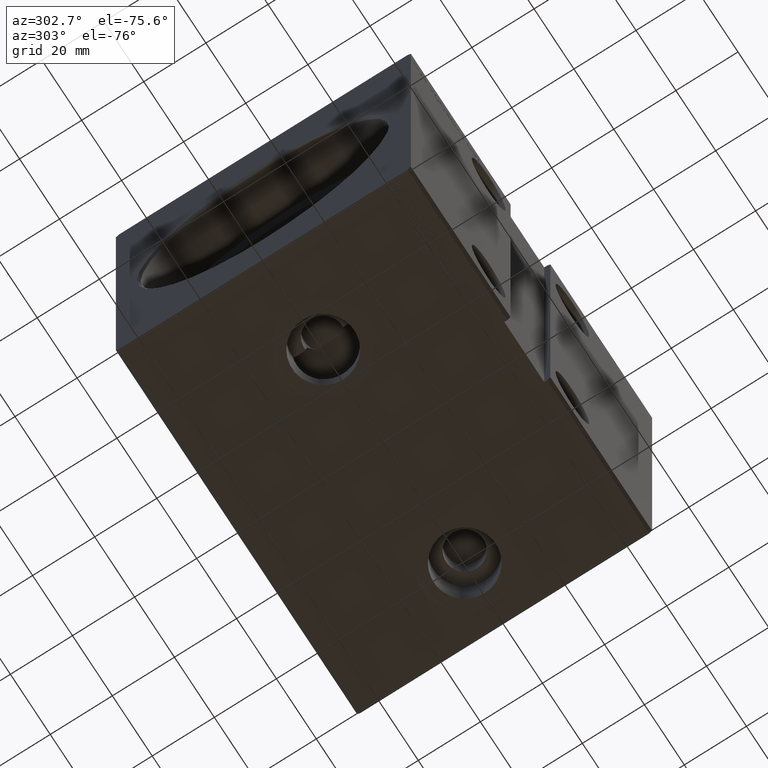
[diagram: clean part render]
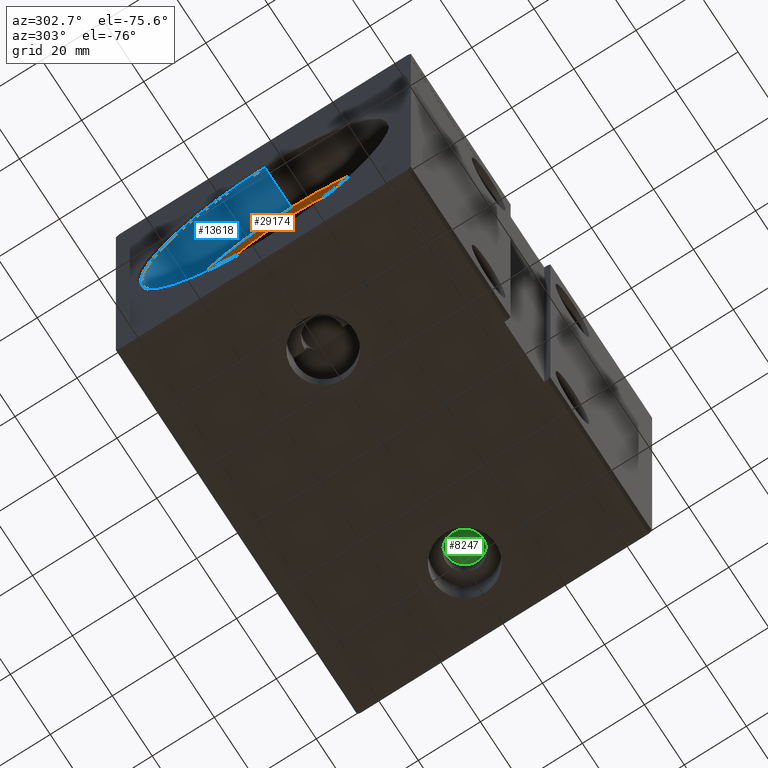
[diagram: same view with three faces highlighted in distinct colors, each labeled with its STEP entity id]
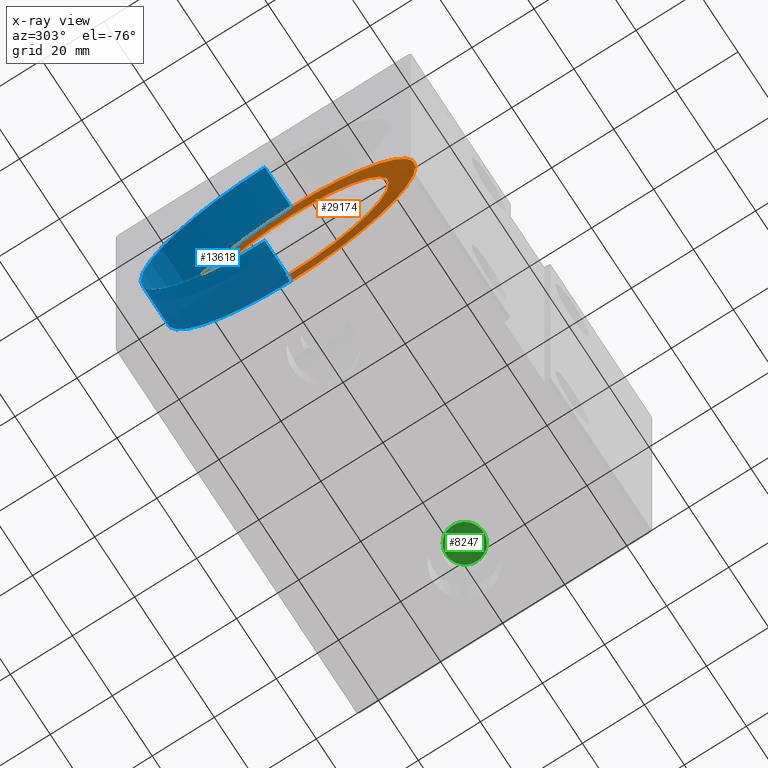
[diagram: x-ray of the same camera — body ghosted, the three highlighted faces saturated]
A machine part, auxiliary view with three faces highlighted in distinct colors.
The next image is the same camera in x-ray (body ghosted, the three faces saturated) — at least one of them is partly hidden behind the body in this view.
Their STEP definitions:

[orange] entity #29174 — the highlighted planar face has unit normal (-1, 0, 0).
#488 = CARTESIAN_POINT ( 'NONE',  ( 13.99999999999999822, 0.000000000000000000, 31.50000000000000000 ) ) ;
#875 = VERTEX_POINT ( 'NONE', #488 ) ;
#2375 = EDGE_CURVE ( 'NONE', #41152, #875, #17543, .T. ) ;
#6360 = DIRECTION ( 'NONE',  ( 0.000000000000000000, 0.000000000000000000, 1.000000000000000000 ) ) ;
#6861 = AXIS2_PLACEMENT_3D ( 'NONE', #16588, #29590, #6360 ) ;
#8721 = DIRECTION ( 'NONE',  ( -1.000000000000000000, 0.000000000000000000, 0.000000000000000000 ) ) ;
#10766 = ORIENTED_EDGE ( 'NONE', *, *, #17046, .F. ) ;
#11341 = AXIS2_PLACEMENT_3D ( 'NONE', #15786, #12373, #41798 ) ;
#11582 = ORIENTED_EDGE ( 'NONE', *, *, #23673, .T. ) ;
#12046 = VERTEX_POINT ( 'NONE', #22905 ) ;
#12373 = DIRECTION ( 'NONE',  ( -1.000000000000000000, 0.000000000000000000, 0.000000000000000000 ) ) ;
#12471 = ORIENTED_EDGE ( 'NONE', *, *, #2375, .F. ) ;
#13232 = EDGE_LOOP ( 'NONE', ( #33689, #11582 ) ) ;
#15243 = AXIS2_PLACEMENT_3D ( 'NONE', #38928, #20157, #42133 ) ;
#15325 = FACE_BOUND ( 'NONE', #29424, .T. ) ;
#15786 = CARTESIAN_POINT ( 'NONE',  ( 14.00000000000000000, 0.000000000000000000, 0.000000000000000000 ) ) ;
#16588 = CARTESIAN_POINT ( 'NONE',  ( 13.99999999999999822, 0.000000000000000000, 0.000000000000000000 ) ) ;
#17046 = EDGE_CURVE ( 'NONE', #875, #41152, #29988, .T. ) ;
#17543 = CIRCLE ( 'NONE', #18884, 31.50000000000000000 ) ;
#18322 = CARTESIAN_POINT ( 'NONE',  ( 14.00000000000000000, 0.000000000000000000, 0.000000000000000000 ) ) ;
#18884 = AXIS2_PLACEMENT_3D ( 'NONE', #32081, #36675, #39875 ) ;
#20157 = DIRECTION ( 'NONE',  ( -1.000000000000000000, 0.000000000000000000, 0.000000000000000000 ) ) ;
#22905 = CARTESIAN_POINT ( 'NONE',  ( 14.00000000000000000, 0.000000000000000000, 40.00000000000000000 ) ) ;
#23673 = EDGE_CURVE ( 'NONE', #25391, #12046, #37716, .T. ) ;
#24725 = FACE_OUTER_BOUND ( 'NONE', #13232, .T. ) ;
#25314 = CARTESIAN_POINT ( 'NONE',  ( 13.99999999999999822, 3.857637417314162689E-15, -31.50000000000000000 ) ) ;
#25391 = VERTEX_POINT ( 'NONE', #40667 ) ;
#28232 = EDGE_CURVE ( 'NONE', #12046, #25391, #29729, .T. ) ;
#29174 = ADVANCED_FACE ( 'NONE', ( #15325, #24725 ), #37706, .T. ) ;
#29424 = EDGE_LOOP ( 'NONE', ( #10766, #12471 ) ) ;
#29590 = DIRECTION ( 'NONE',  ( -1.000000000000000000, 0.000000000000000000, 0.000000000000000000 ) ) ;
#29729 = CIRCLE ( 'NONE', #11341, 40.00000000000000000 ) ;
#29988 = CIRCLE ( 'NONE', #6861, 31.50000000000000000 ) ;
#31328 = DIRECTION ( 'NONE',  ( 0.000000000000000000, 0.000000000000000000, 1.000000000000000000 ) ) ;
#32081 = CARTESIAN_POINT ( 'NONE',  ( 13.99999999999999822, 0.000000000000000000, 0.000000000000000000 ) ) ;
#33689 = ORIENTED_EDGE ( 'NONE', *, *, #28232, .T. ) ;
#36675 = DIRECTION ( 'NONE',  ( -1.000000000000000000, 0.000000000000000000, 0.000000000000000000 ) ) ;
#37706 = PLANE ( 'NONE',  #42031 ) ;
#37716 = CIRCLE ( 'NONE', #15243, 40.00000000000000000 ) ;
#38928 = CARTESIAN_POINT ( 'NONE',  ( 14.00000000000000000, 0.000000000000000000, 0.000000000000000000 ) ) ;
#39875 = DIRECTION ( 'NONE',  ( 0.000000000000000000, 0.000000000000000000, 1.000000000000000000 ) ) ;
#40667 = CARTESIAN_POINT ( 'NONE',  ( 14.00000000000000000, 4.898587196589413026E-15, -40.00000000000000000 ) ) ;
#41152 = VERTEX_POINT ( 'NONE', #25314 ) ;
#41798 = DIRECTION ( 'NONE',  ( 0.000000000000000000, 0.000000000000000000, 1.000000000000000000 ) ) ;
#42031 = AXIS2_PLACEMENT_3D ( 'NONE', #18322, #8721, #31328 ) ;
#42133 = DIRECTION ( 'NONE',  ( 0.000000000000000000, 0.000000000000000000, 1.000000000000000000 ) ) ;

[blue] entity #13618 — the highlighted cylindrical surface (partial cylindrical patch) has radius 40 mm, axis along (-1, -0, -0).
#147 = EDGE_LOOP ( 'NONE', ( #32325, #39112, #31190, #35696 ) ) ;
#625 = CARTESIAN_POINT ( 'NONE',  ( 14.00000000000000000, 0.000000000000000000, 40.00000000000000000 ) ) ;
#4231 = DIRECTION ( 'NONE',  ( -1.000000000000000000, -0.000000000000000000, -0.000000000000000000 ) ) ;
#6005 = DIRECTION ( 'NONE',  ( -1.000000000000000000, -0.000000000000000000, -0.000000000000000000 ) ) ;
#7905 = CARTESIAN_POINT ( 'NONE',  ( 0.7000000000000130562, 0.000000000000000000, 0.000000000000000000 ) ) ;
#10330 = EDGE_CURVE ( 'NONE', #12597, #32210, #42225, .T. ) ;
#11341 = AXIS2_PLACEMENT_3D ( 'NONE', #15786, #12373, #41798 ) ;
#12046 = VERTEX_POINT ( 'NONE', #22905 ) ;
#12373 = DIRECTION ( 'NONE',  ( -1.000000000000000000, 0.000000000000000000, 0.000000000000000000 ) ) ;
#12597 = VERTEX_POINT ( 'NONE', #33675 ) ;
#13617 = LINE ( 'NONE', #17245, #24041 ) ;
#13618 = ADVANCED_FACE ( 'NONE', ( #22209 ), #28411, .F. ) ;
#13663 = VECTOR ( 'NONE', #42013, 1000.000000000000000 ) ;
#15786 = CARTESIAN_POINT ( 'NONE',  ( 14.00000000000000000, 0.000000000000000000, 0.000000000000000000 ) ) ;
#17245 = CARTESIAN_POINT ( 'NONE',  ( 14.00000000000000000, 4.898587196589413026E-15, -40.00000000000000000 ) ) ;
#18298 = EDGE_CURVE ( 'NONE', #12046, #12597, #32621, .T. ) ;
#20433 = AXIS2_PLACEMENT_3D ( 'NONE', #7905, #26678, #39666 ) ;
#21472 = EDGE_CURVE ( 'NONE', #25391, #32210, #13617, .T. ) ;
#22209 = FACE_OUTER_BOUND ( 'NONE', #147, .T. ) ;
#22535 = CARTESIAN_POINT ( 'NONE',  ( 0.7000000000000130562, 4.898587196589413026E-15, -40.00000000000000000 ) ) ;
#22905 = CARTESIAN_POINT ( 'NONE',  ( 14.00000000000000000, 0.000000000000000000, 40.00000000000000000 ) ) ;
#24041 = VECTOR ( 'NONE', #4231, 1000.000000000000000 ) ;
#25391 = VERTEX_POINT ( 'NONE', #40667 ) ;
#26678 = DIRECTION ( 'NONE',  ( -1.000000000000000000, 0.000000000000000000, 0.000000000000000000 ) ) ;
#28232 = EDGE_CURVE ( 'NONE', #12046, #25391, #29729, .T. ) ;
#28411 = CYLINDRICAL_SURFACE ( 'NONE', #32660, 40.00000000000000000 ) ;
#29729 = CIRCLE ( 'NONE', #11341, 40.00000000000000000 ) ;
#31190 = ORIENTED_EDGE ( 'NONE', *, *, #18298, .T. ) ;
#32012 = DIRECTION ( 'NONE',  ( 0.000000000000000000, 0.000000000000000000, 1.000000000000000000 ) ) ;
#32210 = VERTEX_POINT ( 'NONE', #22535 ) ;
#32325 = ORIENTED_EDGE ( 'NONE', *, *, #21472, .F. ) ;
#32621 = LINE ( 'NONE', #625, #13663 ) ;
#32660 = AXIS2_PLACEMENT_3D ( 'NONE', #35198, #6005, #32012 ) ;
#33675 = CARTESIAN_POINT ( 'NONE',  ( 0.7000000000000130562, 0.000000000000000000, 40.00000000000000000 ) ) ;
#35198 = CARTESIAN_POINT ( 'NONE',  ( 14.00000000000000000, 0.000000000000000000, 0.000000000000000000 ) ) ;
#35696 = ORIENTED_EDGE ( 'NONE', *, *, #10330, .T. ) ;
#39112 = ORIENTED_EDGE ( 'NONE', *, *, #28232, .F. ) ;
#39666 = DIRECTION ( 'NONE',  ( 0.000000000000000000, 0.000000000000000000, -1.000000000000000000 ) ) ;
#40667 = CARTESIAN_POINT ( 'NONE',  ( 14.00000000000000000, 4.898587196589413026E-15, -40.00000000000000000 ) ) ;
#41798 = DIRECTION ( 'NONE',  ( 0.000000000000000000, 0.000000000000000000, 1.000000000000000000 ) ) ;
#42013 = DIRECTION ( 'NONE',  ( -1.000000000000000000, -0.000000000000000000, -0.000000000000000000 ) ) ;
#42225 = CIRCLE ( 'NONE', #20433, 40.00000000000000000 ) ;

[green] entity #8247 — the highlighted planar face has unit normal (0, 0, -1).
#432 = CARTESIAN_POINT ( 'NONE',  ( 100.9999999999999858, -5.789088070571289040E-15, -40.89999999999999858 ) ) ;
#5390 = VERTEX_POINT ( 'NONE', #30780 ) ;
#6234 = DIRECTION ( 'NONE',  ( -1.000000000000000000, 0.000000000000000000, 0.000000000000000000 ) ) ;
#6863 = CARTESIAN_POINT ( 'NONE',  ( 100.9999999999999858, -5.789088070571289040E-15, -40.89999999999999858 ) ) ;
#8247 = ADVANCED_FACE ( 'NONE', ( #25759 ), #38753, .T. ) ;
#9343 = CARTESIAN_POINT ( 'NONE',  ( 100.9999999999999858, -5.789088070571289040E-15, -40.89999999999999858 ) ) ;
#10280 = EDGE_CURVE ( 'NONE', #5390, #34385, #25791, .T. ) ;
#13138 = EDGE_LOOP ( 'NONE', ( #22174, #30609 ) ) ;
#16658 = DIRECTION ( 'NONE',  ( -1.000000000000000000, 0.000000000000000000, 0.000000000000000000 ) ) ;
#22174 = ORIENTED_EDGE ( 'NONE', *, *, #33251, .T. ) ;
#22348 = DIRECTION ( 'NONE',  ( 0.000000000000000000, 0.000000000000000000, -1.000000000000000000 ) ) ;
#22845 = DIRECTION ( 'NONE',  ( 0.000000000000000000, 0.000000000000000000, -1.000000000000000000 ) ) ;
#25759 = FACE_OUTER_BOUND ( 'NONE', #13138, .T. ) ;
#25791 = CIRCLE ( 'NONE', #37429, 6.000000000000005329 ) ;
#26413 = CIRCLE ( 'NONE', #40709, 6.000000000000005329 ) ;
#30609 = ORIENTED_EDGE ( 'NONE', *, *, #10280, .T. ) ;
#30780 = CARTESIAN_POINT ( 'NONE',  ( 107.0000000000000000, -5.054299991082877362E-15, -40.89999999999999858 ) ) ;
#33251 = EDGE_CURVE ( 'NONE', #34385, #5390, #26413, .T. ) ;
#34385 = VERTEX_POINT ( 'NONE', #39155 ) ;
#35341 = AXIS2_PLACEMENT_3D ( 'NONE', #9343, #22348, #35346 ) ;
#35346 = DIRECTION ( 'NONE',  ( -1.000000000000000000, 0.000000000000000000, -0.000000000000000000 ) ) ;
#36671 = DIRECTION ( 'NONE',  ( 0.000000000000000000, 0.000000000000000000, -1.000000000000000000 ) ) ;
#37429 = AXIS2_PLACEMENT_3D ( 'NONE', #6863, #22845, #6234 ) ;
#38753 = PLANE ( 'NONE',  #35341 ) ;
#39155 = CARTESIAN_POINT ( 'NONE',  ( 94.99999999999998579, -5.789088070571289040E-15, -40.89999999999999858 ) ) ;
#40709 = AXIS2_PLACEMENT_3D ( 'NONE', #432, #36671, #16658 ) ;